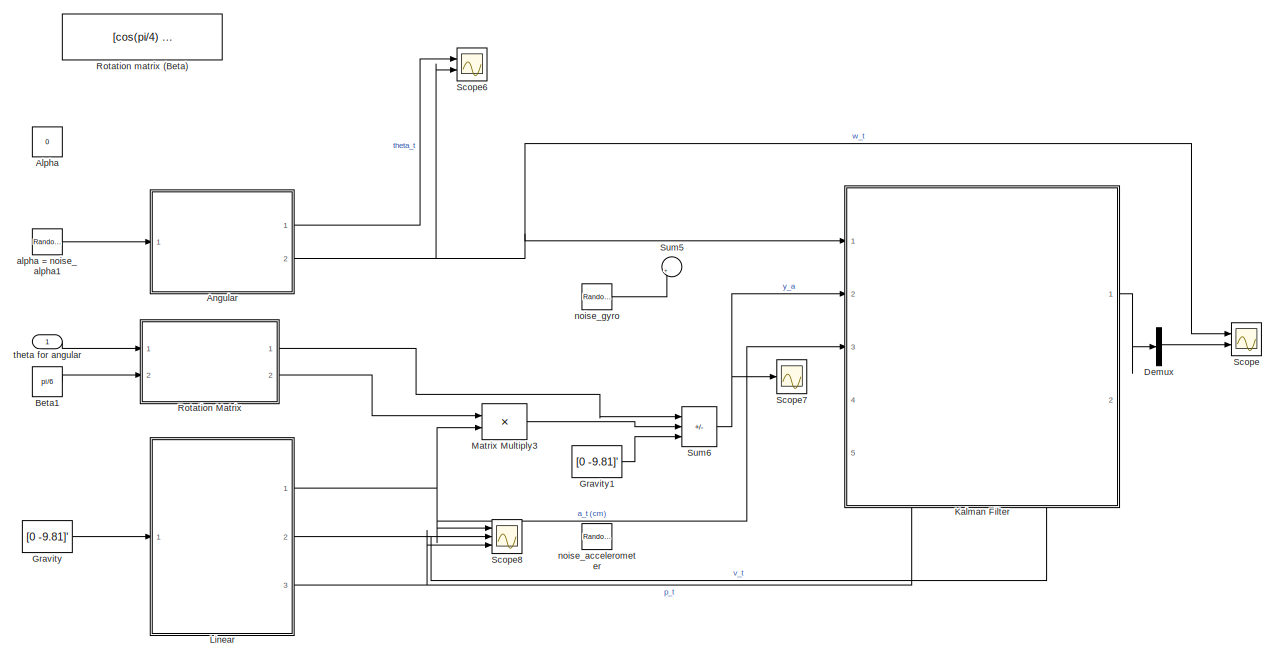
[diagram: root canvas - part 1/4, top right region]
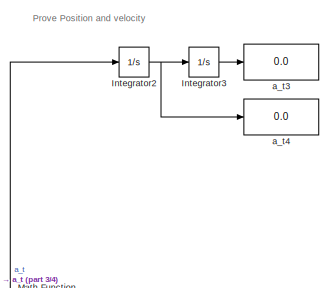
[diagram: root canvas - part 2/4, middle left region]
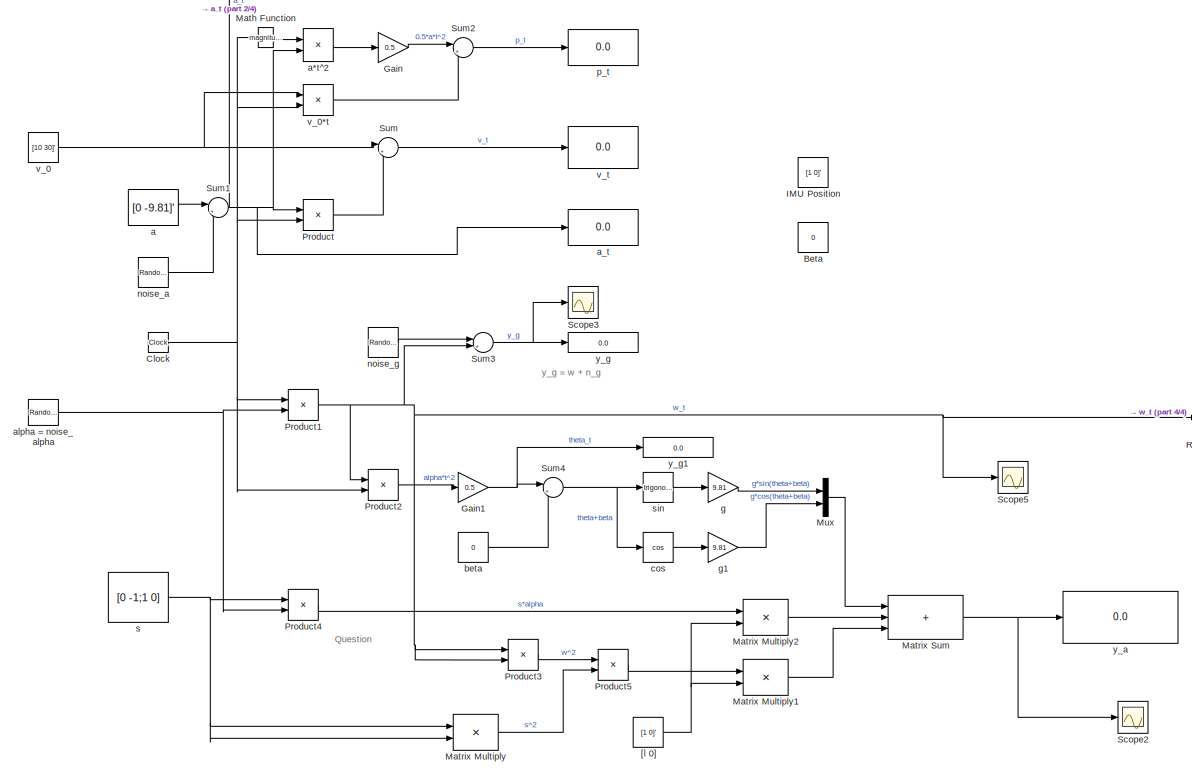
[diagram: root canvas - part 3/4, bottom left region]
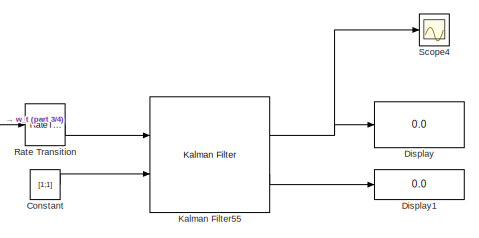
[diagram: root canvas - part 4/4, bottom center region]
MODEL slx_23c8442a9cd9
KIND model
CONFIG AbsTol = auto
CONFIG EnableMultiTasking = off
CONFIG FixedStep = auto
CONFIG MaxStep = auto
CONFIG MinStep = auto
CONFIG RelTol = 1e-3
CONFIG SampleTimeConstraint = Unconstrained
CONFIG SolverName = VariableStepAuto
CONFIG StartTime = 0.0
CONFIG StopTime = 10
BLOCK [Constant] Alpha
  Value = 0
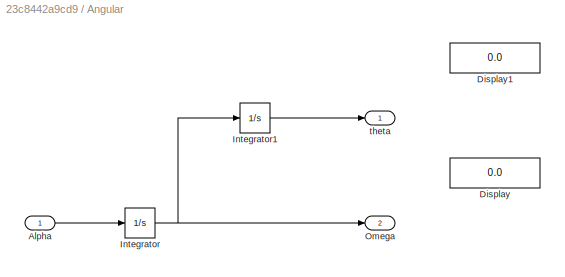
BLOCK [SubSystem] Angular
  NameLocation = top
  Ports = [1, 2]
  RequestExecContextInheritance = off
BLOCK [Inport] Angular/Alpha
BLOCK [Display] Angular/Display
  Decimation = 1
  Ports = [1]
BLOCK [Display] Angular/Display1
  Decimation = 1
  Ports = [1]
BLOCK [Integrator] Angular/Integrator
  Ports = [1, 1]
BLOCK [Integrator] Angular/Integrator1
  InitialCondition = pi/6
  Ports = [1, 1]
BLOCK [Outport] Angular/Omega
  Port = 2
BLOCK [Outport] Angular/theta
BLOCK [Constant] Beta
  Value = 0
  VectorParams1D = off
BLOCK [Constant] Beta1
  Value = pi/6
BLOCK [Clock] Clock
BLOCK [Constant] Constant
  Value = [1;1]
  VectorParams1D = off
BLOCK [Demux] Demux
  Outputs = 3
  Ports = [1, 3]
BLOCK [Display] Display
  Decimation = 1
  Ports = [1]
BLOCK [Display] Display1
  Decimation = 1
  Format = long
  Ports = [1]
BLOCK [Gain] Gain
  Gain = 0.5
BLOCK [Gain] Gain1
  Gain = 0.5
BLOCK [Constant] Gravity
  Value = [0 -9.81]'
  VectorParams1D = off
BLOCK [Constant] Gravity1
  SampleTime = 0.1
  Value = [0 -9.81]'
  VectorParams1D = off
BLOCK [Constant] IMU Position
  Value = [1 0]'
  VectorParams1D = off
BLOCK [Integrator] Integrator2
  InitialCondition = [10;30]
  Ports = [1, 1]
BLOCK [Integrator] Integrator3
  Ports = [1, 1]
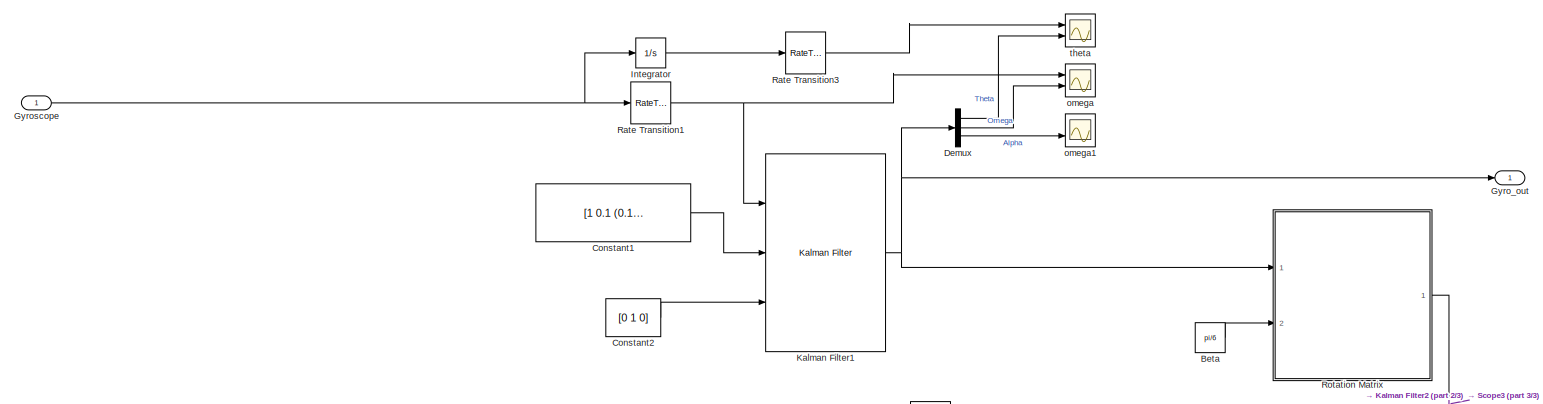
[diagram: Kalman Filter - part 1/3, full width, top band]
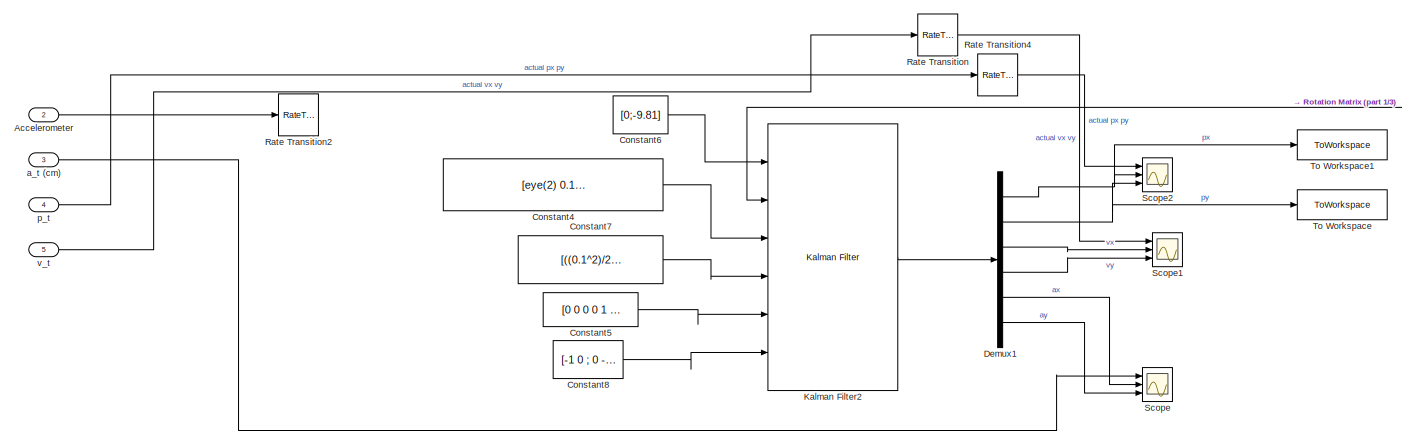
[diagram: Kalman Filter - part 2/3, full width, bottom band]
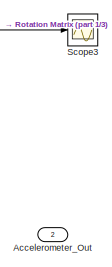
[diagram: Kalman Filter - part 3/3, middle right region]
BLOCK [SubSystem] Kalman Filter
  NameLocation = top
  PortSchema = {"entries":[{"content":{"sides":[{"content":{"connectorIds":["In1","In2","In3"]},"type":"ConnectorPlacement.EquallySpacedRectSide","uuid":"b91da42b-9c61-4823-9da5-de67facf4bc9"},{"content":{"connectorIds":["Out1","Out2"],"side":"RIGHT"},"type":"ConnectorPlacement.EquallySpacedRectSide","uuid":"2be3e4bd-003a-4305-9356-0140a49c88fd"},{"content":{"connectorIds":[],"side":"TOP"},"type":"ConnectorPlace...<+414ch>
  Ports = [5, 2]
  RequestExecContextInheritance = off
BLOCK [Inport] Kalman Filter/Accelerometer
  Port = 2
BLOCK [Outport] Kalman Filter/Accelerometer_Out
  Port = 2
BLOCK [Constant] Kalman Filter/Beta
  Value = pi/6
BLOCK [Constant] Kalman Filter/Constant1
  SampleTime = 0.1
  Value = [1 0.1 (0.1^2)/2;0 1 0.1;0 0 1]
  VectorParams1D = off
BLOCK [Constant] Kalman Filter/Constant2
  SampleTime = 0.1
  Value = [0 1 0]
  VectorParams1D = off
BLOCK [Constant] Kalman Filter/Constant4
  SampleTime = 0.1
  Value = [eye(2) 0.1.*eye(2) zeros(2);zeros(2) eye(2) zeros(2);zeros(2) zeros(2) zeros(2)]
  VectorParams1D = off
BLOCK [Constant] Kalman Filter/Constant5
  SampleTime = 0.1
  Value = [0 0 0 0 1 0;0 0 0 0 0 1]
  VectorParams1D = off
BLOCK [Constant] Kalman Filter/Constant6
  SampleTime = 0.1
  Value = [0;-9.81]
  VectorParams1D = off
BLOCK [Constant] Kalman Filter/Constant7
  SampleTime = 0.1
  Value = [((0.1^2)/2).*eye(2);0.1.*eye(2);eye(2)]
  VectorParams1D = off
BLOCK [Constant] Kalman Filter/Constant8
  SampleTime = 0.1
  Value = [-1 0 ; 0 -1]
  VectorParams1D = off
BLOCK [Demux] Kalman Filter/Demux
  Outputs = 3
  Ports = [1, 3]
BLOCK [Demux] Kalman Filter/Demux1
  Outputs = 6
  Ports = [1, 6]
BLOCK [Outport] Kalman Filter/Gyro_out
BLOCK [Inport] Kalman Filter/Gyroscope
BLOCK [Integrator] Kalman Filter/Integrator
  InitialCondition = pi/6
  Ports = [1, 1]
BLOCK [Reference] Kalman Filter/Kalman Filter1  REF=ctrlSharedLib/Kalman Filter
  Ports = [3, 1]
  SourceBlock = ctrlSharedLib/Kalman Filter
  SourceProductBaseCode = CT,ID
  SourceType = ctrlKalmanFilter
BLOCK [Reference] Kalman Filter/Kalman Filter2  REF=ctrlSharedLib/Kalman Filter
  Ports = [6, 1]
  SourceBlock = ctrlSharedLib/Kalman Filter
  SourceProductBaseCode = CT,ID
  SourceType = ctrlKalmanFilter
BLOCK [RateTransition] Kalman Filter/Rate Transition
  OutPortSampleTime = 0.1
BLOCK [RateTransition] Kalman Filter/Rate Transition1
  OutPortSampleTime = 0.1
BLOCK [RateTransition] Kalman Filter/Rate Transition2
  OutPortSampleTime = 0.1
BLOCK [RateTransition] Kalman Filter/Rate Transition3
  OutPortSampleTime = 0.1
BLOCK [RateTransition] Kalman Filter/Rate Transition4
  OutPortSampleTime = 0.1
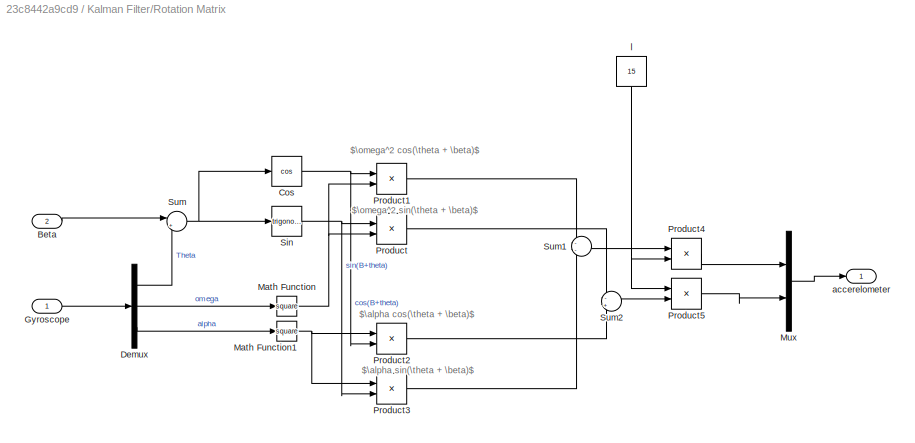
BLOCK [SubSystem] Kalman Filter/Rotation Matrix
  Ports = [2, 1]
  RequestExecContextInheritance = off
BLOCK [Inport] Kalman Filter/Rotation Matrix/Beta
  Port = 2
BLOCK [Trigonometry] Kalman Filter/Rotation Matrix/Cos
  Operator = cos
  Ports = [1, 1]
BLOCK [Demux] Kalman Filter/Rotation Matrix/Demux
  Outputs = 3
  Ports = [1, 3]
BLOCK [Inport] Kalman Filter/Rotation Matrix/Gyroscope
BLOCK [Math] Kalman Filter/Rotation Matrix/Math Function
  Operator = square
  Ports = [1, 1]
BLOCK [Math] Kalman Filter/Rotation Matrix/Math Function1
  Operator = square
  Ports = [1, 1]
BLOCK [Mux] Kalman Filter/Rotation Matrix/Mux
  DisplayOption = bar
  Inputs = 2
  Ports = [2, 1]
BLOCK [Product] Kalman Filter/Rotation Matrix/Product
  Ports = [2, 1]
BLOCK [Product] Kalman Filter/Rotation Matrix/Product1
  Ports = [2, 1]
BLOCK [Product] Kalman Filter/Rotation Matrix/Product2
  Ports = [2, 1]
BLOCK [Product] Kalman Filter/Rotation Matrix/Product3
  Ports = [2, 1]
BLOCK [Product] Kalman Filter/Rotation Matrix/Product4
  Ports = [2, 1]
BLOCK [Product] Kalman Filter/Rotation Matrix/Product5
  Ports = [2, 1]
BLOCK [Trigonometry] Kalman Filter/Rotation Matrix/Sin
  Ports = [1, 1]
BLOCK [Sum] Kalman Filter/Rotation Matrix/Sum
  Inputs = |++
  Ports = [2, 1]
BLOCK [Sum] Kalman Filter/Rotation Matrix/Sum1
  Inputs = --
  Ports = [2, 1]
BLOCK [Sum] Kalman Filter/Rotation Matrix/Sum2
  Inputs = -+
  Ports = [2, 1]
BLOCK [Outport] Kalman Filter/Rotation Matrix/accerelometer
BLOCK [Constant] Kalman Filter/Rotation Matrix/l
  NameLocation = top
  SampleTime = 0.1
  Value = 15
  VectorParams1D = off
BLOCK [Scope] Kalman Filter/Scope
  Floating = off
  NumInputPorts = 3
  Ports = [3]
  ScopeSpecificationString = Simulink.scopes.TimeScopeBlockCfg('CurrentConfiguration', extmgr.ConfigurationSet(extmgr.Configuration('Core','General UI',true),extmgr.Configuration('Core','Source UI',true),extmgr.Configuration('Sources','WiredSimulink',true,'DataLoggingVariableName','ScopeData2'),extmgr.Configuration('Visuals','Time Domain',true,'SerializedDisplays',{struct('MinYLimReal','-14.08176','MaxYLimReal','3.80741','YLa...<+1562ch>
BLOCK [Scope] Kalman Filter/Scope1
  Floating = off
  NumInputPorts = 3
  Ports = [3]
  ScopeSpecificationString = Simulink.scopes.TimeScopeBlockCfg('CurrentConfiguration', extmgr.ConfigurationSet(extmgr.Configuration('Core','General UI',true),extmgr.Configuration('Core','Source UI',true),extmgr.Configuration('Sources','WiredSimulink',true,'DataLoggingVariableName','ScopeData3'),extmgr.Configuration('Visuals','Time Domain',true,'SerializedDisplays',{struct('MinYLimReal','-105.61389','MaxYLimReal','18.2951','YL...<+1481ch>
BLOCK [Scope] Kalman Filter/Scope2
  Floating = off
  NumInputPorts = 3
  Ports = [3]
  ScopeSpecificationString = Simulink.scopes.TimeScopeBlockCfg('CurrentConfiguration', extmgr.ConfigurationSet(extmgr.Configuration('Core','General UI',true),extmgr.Configuration('Core','Source UI',true),extmgr.Configuration('Sources','WiredSimulink',true,'DataLoggingVariableName','ScopeData4'),extmgr.Configuration('Visuals','Time Domain',true,'SerializedDisplays',{struct('MinYLimReal','-502.83885','MaxYLimReal','115.89466','...<+1456ch>
BLOCK [Scope] Kalman Filter/Scope3
  Floating = off
  NumInputPorts = 1
  Ports = [1]
  ScopeSpecificationString = Simulink.scopes.TimeScopeBlockCfg('CurrentConfiguration', extmgr.ConfigurationSet(extmgr.Configuration('Core','General UI',true),extmgr.Configuration('Core','Source UI',true),extmgr.Configuration('Sources','WiredSimulink',true,'DataLoggingVariableName','ScopeData1'),extmgr.Configuration('Visuals','Time Domain',true,'SerializedDisplays',{struct('MinYLimReal','-0.0975','MaxYLimReal','0.01083','YLabe...<+1434ch>
BLOCK [ToWorkspace] Kalman Filter/To Workspace
  FixptAsFi = on
  MaxDataPoints = inf
  Ports = [1]
  SampleTime = -1
  SaveFormat = Timeseries
  VariableName = simout
BLOCK [ToWorkspace] Kalman Filter/To Workspace1
  FixptAsFi = on
  MaxDataPoints = inf
  Ports = [1]
  SampleTime = -1
  SaveFormat = Timeseries
  VariableName = simout1
BLOCK [Inport] Kalman Filter/a_t (cm)
  Port = 3
BLOCK [Scope] Kalman Filter/omega
  Floating = off
  NumInputPorts = 2
  Ports = [2]
  ScopeSpecificationString = Simulink.scopes.TimeScopeBlockCfg('CurrentConfiguration', extmgr.ConfigurationSet(extmgr.Configuration('Core','General UI',true),extmgr.Configuration('Core','Source UI',true),extmgr.Configuration('Sources','WiredSimulink',true,'DataLoggingVariableName','ScopeData9'),extmgr.Configuration('Visuals','Time Domain',true,'SerializedDisplays',{struct('MinYLimReal','-0.0113','MaxYLimReal','0.10172','YLabe...<+1379ch>
BLOCK [Scope] Kalman Filter/omega1
  Floating = off
  NumInputPorts = 2
  Ports = [2]
  ScopeSpecificationString = Simulink.scopes.TimeScopeBlockCfg('CurrentConfiguration', extmgr.ConfigurationSet(extmgr.Configuration('Core','General UI',true),extmgr.Configuration('Core','Source UI',true),extmgr.Configuration('Sources','WiredSimulink',true,'DataLoggingVariableName','ScopeData1'),extmgr.Configuration('Visuals','Time Domain',true,'SerializedDisplays',{struct('MinYLimReal','-0.01024','MaxYLimReal','0.03339','YLab...<+1374ch>
BLOCK [Inport] Kalman Filter/p_t
  Port = 4
BLOCK [Scope] Kalman Filter/theta
  Floating = off
  NumInputPorts = 2
  Ports = [2]
  ScopeSpecificationString = Simulink.scopes.TimeScopeBlockCfg('CurrentConfiguration', extmgr.ConfigurationSet(extmgr.Configuration('Core','General UI',true),extmgr.Configuration('Core','Source UI',true),extmgr.Configuration('Sources','WiredSimulink',true,'DataLoggingVariableName','ScopeData8'),extmgr.Configuration('Visuals','Time Domain',true,'SerializedDisplays',{struct('MinYLimReal','0.47333','MaxYLimReal','0.976','YLabelR...<+1373ch>
BLOCK [Inport] Kalman Filter/v_t
  Port = 5
BLOCK [Reference] Kalman Filter55  REF=ctrlSharedLib/Kalman Filter
  Ports = [2, 2]
  SourceBlock = ctrlSharedLib/Kalman Filter
  SourceProductBaseCode = CT,ID
  SourceType = ctrlKalmanFilter
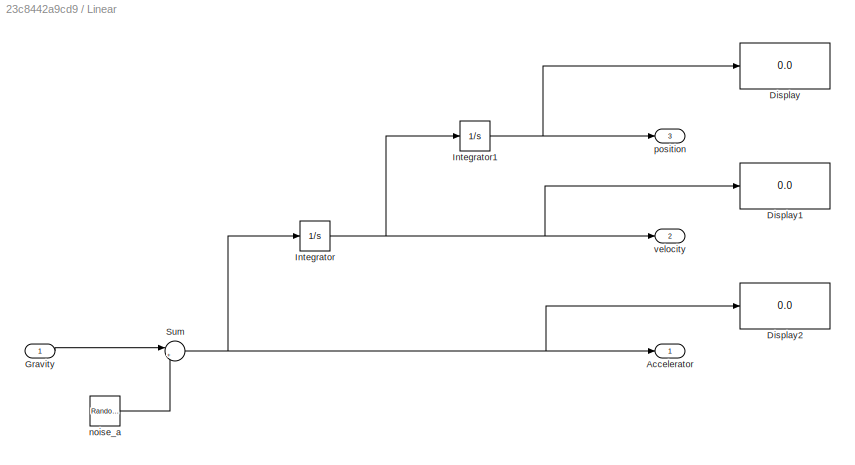
BLOCK [SubSystem] Linear
  NameLocation = top
  Ports = [1, 3]
  RequestExecContextInheritance = off
BLOCK [Outport] Linear/Accelerator
BLOCK [Display] Linear/Display
  Decimation = 1
  Ports = [1]
BLOCK [Display] Linear/Display1
  Decimation = 1
  Ports = [1]
BLOCK [Display] Linear/Display2
  Decimation = 1
  Ports = [1]
BLOCK [Inport] Linear/Gravity
BLOCK [Integrator] Linear/Integrator
  InitialCondition = [5 5]'
  Ports = [1, 1]
BLOCK [Integrator] Linear/Integrator1
  InitialCondition = [0 0]'
  Ports = [1, 1]
BLOCK [Sum] Linear/Sum
  Inputs = |++
  Ports = [2, 1]
BLOCK [RandomNumber] Linear/noise_a
  SampleTime = 0.1
BLOCK [Outport] Linear/position
  Port = 3
BLOCK [Outport] Linear/velocity
  Port = 2
BLOCK [Math] Math Function
  Operator = magnitude^2
  Ports = [1, 1]
BLOCK [Product] Matrix Multiply
  Multiplication = Matrix(*)
  Ports = [2, 1]
BLOCK [Product] Matrix Multiply1
  Multiplication = Matrix(*)
  Ports = [2, 1]
BLOCK [Product] Matrix Multiply2
  Multiplication = Matrix(*)
  Ports = [2, 1]
BLOCK [Product] Matrix Multiply3
  Multiplication = Matrix(*)
  Ports = [2, 1]
BLOCK [Sum] Matrix Sum
  IconShape = rectangular
  Inputs = +++
  Ports = [3, 1]
BLOCK [Mux] Mux
  DisplayOption = bar
  Inputs = 2
  Ports = [2, 1]
BLOCK [Product] Product
  Ports = [2, 1]
BLOCK [Product] Product1
  Ports = [2, 1]
BLOCK [Product] Product2
  Ports = [2, 1]
BLOCK [Product] Product3
  Ports = [2, 1]
BLOCK [Product] Product4
  Ports = [2, 1]
BLOCK [Product] Product5
  Ports = [2, 1]
BLOCK [RateTransition] Rate Transition
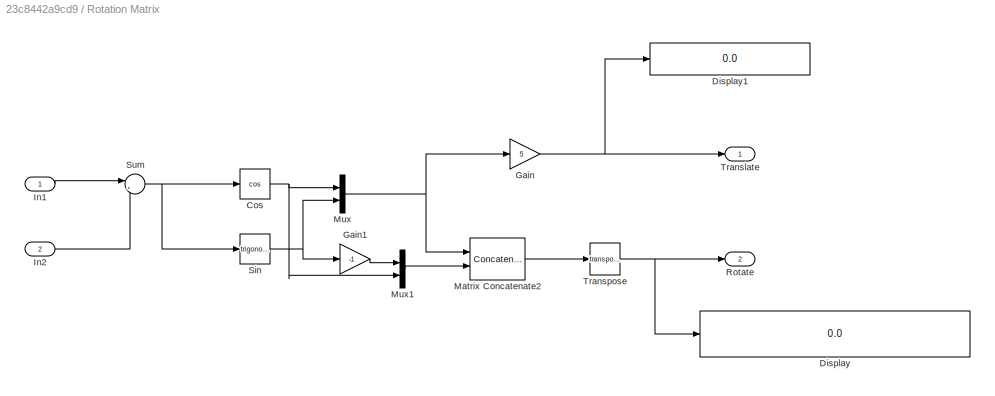
BLOCK [SubSystem] Rotation Matrix
  Ports = [2, 2]
  RequestExecContextInheritance = off
BLOCK [Trigonometry] Rotation Matrix/Cos
  Operator = cos
  Ports = [1, 1]
BLOCK [Display] Rotation Matrix/Display
  Decimation = 1
  Ports = [1]
BLOCK [Display] Rotation Matrix/Display1
  Decimation = 1
  Ports = [1]
BLOCK [Gain] Rotation Matrix/Gain
  Gain = 5
BLOCK [Gain] Rotation Matrix/Gain1
  Gain = -1
BLOCK [Inport] Rotation Matrix/In1
BLOCK [Inport] Rotation Matrix/In2
  Port = 2
BLOCK [Concatenate] Rotation Matrix/Matrix Concatenate2
  ConcatenateDimension = 2
  Mode = Multidimensional array
  Ports = [2, 1]
BLOCK [Mux] Rotation Matrix/Mux
  DisplayOption = bar
  Inputs = 2
  Ports = [2, 1]
BLOCK [Mux] Rotation Matrix/Mux1
  DisplayOption = bar
  Inputs = 2
  Ports = [2, 1]
BLOCK [Outport] Rotation Matrix/Rotate
  Port = 2
BLOCK [Trigonometry] Rotation Matrix/Sin
  Ports = [1, 1]
BLOCK [Sum] Rotation Matrix/Sum
  Inputs = |++
  Ports = [2, 1]
BLOCK [Outport] Rotation Matrix/Translate
BLOCK [Math] Rotation Matrix/Transpose
  Operator = transpose
  Ports = [1, 1]
BLOCK [Constant] Rotation matrix (Beta)
  Value = [cos(pi/4) sin(pi/4);-sin(pi/4) cos(pi/4)]
  VectorParams1D = off
BLOCK [Scope] Scope
  Floating = off
  NumInputPorts = 2
  Ports = [2]
  ScopeSpecificationString = Simulink.scopes.TimeScopeBlockCfg('CurrentConfiguration', extmgr.ConfigurationSet(extmgr.Configuration('Core','General UI',true),extmgr.Configuration('Core','Source UI',true),extmgr.Configuration('Sources','WiredSimulink',true,'DataLoggingVariableName','ScopeData5'),extmgr.Configuration('Visuals','Time Domain',true,'SerializedDisplays',{struct('MinYLimReal','-0.22472','MaxYLimReal','0.3261','YLabe...<+1401ch>
BLOCK [Scope] Scope2
  Floating = off
  NumInputPorts = 1
  Ports = [1]
  ScopeSpecificationString = Simulink.scopes.TimeScopeBlockCfg('CurrentConfiguration', extmgr.ConfigurationSet(extmgr.Configuration('Core','General UI',true),extmgr.Configuration('Core','Source UI',true),extmgr.Configuration('Sources','WiredSimulink',true,'DataLoggingVariableName','ScopeData2'),extmgr.Configuration('Visuals','Time Domain',true,'SerializedDisplays',{struct('MinYLimReal','-13.36131','MaxYLimReal','12.5737','YLa...<+1693ch>
BLOCK [Scope] Scope3
  Commented = on
  Floating = off
  NumInputPorts = 1
  Ports = [1]
  ScopeSpecificationString = Simulink.scopes.TimeScopeBlockCfg('CurrentConfiguration', extmgr.ConfigurationSet(extmgr.Configuration('Core','General UI',true),extmgr.Configuration('Core','Source UI',true),extmgr.Configuration('Sources','WiredSimulink',true,'DataLoggingVariableName','ScopeData3'),extmgr.Configuration('Visuals','Time Domain',true,'SerializedDisplays',{struct('MinYLimReal','-3.03307','MaxYLimReal','2.22094','YLab...<+1399ch>
BLOCK [Scope] Scope4
  Floating = off
  NumInputPorts = 1
  Ports = [1]
  ScopeSpecificationString = Simulink.scopes.TimeScopeBlockCfg('CurrentConfiguration', extmgr.ConfigurationSet(extmgr.Configuration('Core','General UI',true),extmgr.Configuration('Core','Source UI',true),extmgr.Configuration('Sources','WiredSimulink',true,'DataLoggingVariableName','ScopeData4'),extmgr.Configuration('Visuals','Time Domain',true,'SerializedDisplays',{struct('MinYLimReal','-30.21857','MaxYLimReal','5.2383','YLab...<+1440ch>
BLOCK [Scope] Scope5
  Floating = off
  NumInputPorts = 1
  Ports = [1]
  ScopeSpecificationString = Simulink.scopes.TimeScopeBlockCfg('CurrentConfiguration', extmgr.ConfigurationSet(extmgr.Configuration('Core','General UI',true),extmgr.Configuration('Core','Source UI',true),extmgr.Configuration('Sources','WiredSimulink',true,'DataLoggingVariableName','ScopeData5'),extmgr.Configuration('Visuals','Time Domain',true,'SerializedDisplays',{struct('MinYLimReal','-2.75593','MaxYLimReal','1.98605','YLab...<+1420ch>
BLOCK [Scope] Scope6
  Floating = off
  NumInputPorts = 2
  Ports = [2]
  ScopeSpecificationString = Simulink.scopes.TimeScopeBlockCfg('CurrentConfiguration', extmgr.ConfigurationSet(extmgr.Configuration('Core','General UI',true),extmgr.Configuration('Core','Source UI',true),extmgr.Configuration('Sources','WiredSimulink',true,'DataLoggingVariableName','ScopeData2'),extmgr.Configuration('Visuals','Time Domain',true,'SerializedDisplays',{struct('MinYLimReal','-1.54199','MaxYLimReal','12.18149','YLa...<+1407ch>
BLOCK [Scope] Scope7
  Floating = off
  NumInputPorts = 1
  Ports = [1]
  ScopeSpecificationString = Simulink.scopes.TimeScopeBlockCfg('CurrentConfiguration', extmgr.ConfigurationSet(extmgr.Configuration('Core','General UI',true),extmgr.Configuration('Core','Source UI',true),extmgr.Configuration('Sources','WiredSimulink',true,'DataLoggingVariableName','ScopeData3'),extmgr.Configuration('Visuals','Time Domain',true,'SerializedDisplays',{struct('MinYLimReal','-5.03145','MaxYLimReal','5.61806','YLab...<+1755ch>
BLOCK [Scope] Scope8
  Floating = off
  NumInputPorts = 3
  Ports = [3]
  ScopeSpecificationString = Simulink.scopes.TimeScopeBlockCfg('CurrentConfiguration', extmgr.ConfigurationSet(extmgr.Configuration('Core','General UI',true),extmgr.Configuration('Core','Source UI',true),extmgr.Configuration('Sources','WiredSimulink',true,'DataLoggingVariableName','ScopeData4'),extmgr.Configuration('Visuals','Time Domain',true,'SerializedDisplays',{struct('MinYLimReal','-497.79119','MaxYLimReal','115.33381','...<+1483ch>
BLOCK [Sum] Sum
  Inputs = |++
  Ports = [2, 1]
BLOCK [Sum] Sum1
  Inputs = |++
  Ports = [2, 1]
BLOCK [Sum] Sum2
  Inputs = |++
  Ports = [2, 1]
BLOCK [Sum] Sum3
  Commented = on
  Inputs = |++
  Ports = [2, 1]
BLOCK [Sum] Sum4
  Inputs = |++
  Ports = [2, 1]
BLOCK [Sum] Sum5
  Commented = on
  Inputs = |++
  Ports = [2, 1]
BLOCK [Sum] Sum6
  IconShape = rectangular
  Inputs = ++-
  Ports = [3, 1]
BLOCK [Constant] [l 0]
  Value = [1 0]'
  VectorParams1D = off
BLOCK [Constant] a
  Value = [0 -9.81]'
  VectorParams1D = off
BLOCK [Product] a*t^2
  Ports = [2, 1]
BLOCK [Display] a_t
  Decimation = 1
  Ports = [1]
BLOCK [Display] a_t3
  Decimation = 1
  Ports = [1]
BLOCK [Display] a_t4
  Decimation = 1
  Ports = [1]
BLOCK [RandomNumber] alpha = noise_alpha
  SampleTime = 0.1
  Variance = 0.01
  VectorParams1D = off
BLOCK [RandomNumber] alpha = noise_alpha1
  SampleTime = 0.1
  Variance = 0.01
BLOCK [Constant] beta
  Value = 0
BLOCK [Trigonometry] cos
  Operator = cos
  Ports = [1, 1]
BLOCK [Gain] g
  Gain = 9.81
BLOCK [Gain] g1
  Gain = 9.81
BLOCK [RandomNumber] noise_a
  Commented = on
  Mean = [0 0]'
  SampleTime = 0.1
  Seed = [0 0]'
  Variance = [0.01 0.01]'
BLOCK [RandomNumber] noise_accelerometer
  Commented = on
  SampleTime = 0.1
  Variance = [0.01 0.01]
BLOCK [RandomNumber] noise_g
  Commented = on
  SampleTime = 0.1
  Variance = 0.01
BLOCK [RandomNumber] noise_gyro
  Commented = on
  SampleTime = 0.1
  Variance = [0.01]
BLOCK [Display] p_t
  Decimation = 1
  Ports = [1]
BLOCK [Constant] s
  Value = [0 -1;1 0]
  VectorParams1D = off
BLOCK [Trigonometry] sin
  Ports = [1, 1]
BLOCK [Inport] theta for angular
BLOCK [Constant] v_0
  Value = [10 30]'
  VectorParams1D = off
BLOCK [Product] v_0*t
  Ports = [2, 1]
BLOCK [Display] v_t
  Decimation = 1
  Ports = [1]
BLOCK [Display] y_a
  Decimation = 1
  Ports = [1]
BLOCK [Display] y_g
  Commented = on
  Decimation = 1
  Ports = [1]
BLOCK [Display] y_g1
  Decimation = 1
  Ports = [1]
ANNOTATION (root): Question
ANNOTATION (root): Prove Position and velocity
ANNOTATION (root): y_g = w + n_g
ANNOTATION Kalman Filter/Rotation Matrix: $\alpha cos(\theta + \beta)$
ANNOTATION Kalman Filter/Rotation Matrix: $\alpha sin(\theta + \beta)$
ANNOTATION Kalman Filter/Rotation Matrix: $\omega^2 cos(\theta + \beta)$
ANNOTATION Kalman Filter/Rotation Matrix: $\omega^2 sin(\theta + \beta)$
LINE Angular/Alpha:1 -> Angular/Integrator:1
LINE Angular/Integrator1:1 -> Angular/theta:1
NET Angular/Integrator:1 -> Angular/Integrator1:1, Angular/Omega:1
LINE Angular:1 -> Scope6:1
NET Angular:2 -> Kalman Filter:1, Scope6:2, Scope:1
LINE Beta1:1 -> Rotation Matrix:2
NET Clock:1 -> Math Function:1, Product1:1, Product2:2, Product:2, v_0*t:2
LINE Constant:1 -> Kalman Filter55:2
LINE Demux:2 -> Scope:2
NET Gain1:1 -> Sum4:1, y_g1:1
LINE Gain:1 -> Sum2:1
LINE Gravity1:1 -> Sum6:3
LINE Gravity:1 -> Linear:1
NET Integrator2:1 -> Integrator3:1, a_t4:1
LINE Integrator3:1 -> a_t3:1
LINE Kalman Filter/Accelerometer:1 -> Kalman Filter/Rate Transition2:1
LINE Kalman Filter/Beta:1 -> Kalman Filter/Rotation Matrix:2
LINE Kalman Filter/Constant1:1 -> Kalman Filter/Kalman Filter1:2
LINE Kalman Filter/Constant2:1 -> Kalman Filter/Kalman Filter1:3
LINE Kalman Filter/Constant4:1 -> Kalman Filter/Kalman Filter2:3
LINE Kalman Filter/Constant5:1 -> Kalman Filter/Kalman Filter2:5
LINE Kalman Filter/Constant6:1 -> Kalman Filter/Kalman Filter2:1
LINE Kalman Filter/Constant7:1 -> Kalman Filter/Kalman Filter2:4
LINE Kalman Filter/Constant8:1 -> Kalman Filter/Kalman Filter2:6
NET Kalman Filter/Demux1:1 -> Kalman Filter/Scope2:2, Kalman Filter/To Workspace1:1
NET Kalman Filter/Demux1:2 -> Kalman Filter/Scope2:3, Kalman Filter/To Workspace:1
LINE Kalman Filter/Demux1:3 -> Kalman Filter/Scope1:2
LINE Kalman Filter/Demux1:4 -> Kalman Filter/Scope1:3
LINE Kalman Filter/Demux1:5 -> Kalman Filter/Scope:2
LINE Kalman Filter/Demux1:6 -> Kalman Filter/Scope:3
LINE Kalman Filter/Demux:1 -> Kalman Filter/theta:2
LINE Kalman Filter/Demux:2 -> Kalman Filter/omega:2
LINE Kalman Filter/Demux:3 -> Kalman Filter/omega1:2
NET Kalman Filter/Gyroscope:1 -> Kalman Filter/Integrator:1, Kalman Filter/Rate Transition1:1
LINE Kalman Filter/Integrator:1 -> Kalman Filter/Rate Transition3:1
NET Kalman Filter/Kalman Filter1:1 -> Kalman Filter/Demux:1, Kalman Filter/Gyro_out:1, Kalman Filter/Rotation Matrix:1
LINE Kalman Filter/Kalman Filter2:1 -> Kalman Filter/Demux1:1
NET Kalman Filter/Rate Transition1:1 -> Kalman Filter/Kalman Filter1:1, Kalman Filter/omega:1
LINE Kalman Filter/Rate Transition3:1 -> Kalman Filter/theta:1
LINE Kalman Filter/Rate Transition4:1 -> Kalman Filter/Scope2:1
LINE Kalman Filter/Rate Transition:1 -> Kalman Filter/Scope1:1
LINE Kalman Filter/Rotation Matrix/Beta:1 -> Kalman Filter/Rotation Matrix/Sum:1
NET Kalman Filter/Rotation Matrix/Cos:1 -> Kalman Filter/Rotation Matrix/Product1:1, Kalman Filter/Rotation Matrix/Product2:2
LINE Kalman Filter/Rotation Matrix/Demux:1 -> Kalman Filter/Rotation Matrix/Sum:2
LINE Kalman Filter/Rotation Matrix/Demux:2 -> Kalman Filter/Rotation Matrix/Math Function:1
LINE Kalman Filter/Rotation Matrix/Demux:3 -> Kalman Filter/Rotation Matrix/Math Function1:1
LINE Kalman Filter/Rotation Matrix/Gyroscope:1 -> Kalman Filter/Rotation Matrix/Demux:1
NET Kalman Filter/Rotation Matrix/Math Function1:1 -> Kalman Filter/Rotation Matrix/Product2:1, Kalman Filter/Rotation Matrix/Product3:1
NET Kalman Filter/Rotation Matrix/Math Function:1 -> Kalman Filter/Rotation Matrix/Product1:2, Kalman Filter/Rotation Matrix/Product:2
LINE Kalman Filter/Rotation Matrix/Mux:1 -> Kalman Filter/Rotation Matrix/accerelometer:1
LINE Kalman Filter/Rotation Matrix/Product1:1 -> Kalman Filter/Rotation Matrix/Sum1:1
LINE Kalman Filter/Rotation Matrix/Product2:1 -> Kalman Filter/Rotation Matrix/Sum2:2
LINE Kalman Filter/Rotation Matrix/Product3:1 -> Kalman Filter/Rotation Matrix/Sum1:2
LINE Kalman Filter/Rotation Matrix/Product4:1 -> Kalman Filter/Rotation Matrix/Mux:1
LINE Kalman Filter/Rotation Matrix/Product5:1 -> Kalman Filter/Rotation Matrix/Mux:2
LINE Kalman Filter/Rotation Matrix/Product:1 -> Kalman Filter/Rotation Matrix/Sum2:1
NET Kalman Filter/Rotation Matrix/Sin:1 -> Kalman Filter/Rotation Matrix/Product3:2, Kalman Filter/Rotation Matrix/Product:1
LINE Kalman Filter/Rotation Matrix/Sum1:1 -> Kalman Filter/Rotation Matrix/Product4:1
LINE Kalman Filter/Rotation Matrix/Sum2:1 -> Kalman Filter/Rotation Matrix/Product5:2
NET Kalman Filter/Rotation Matrix/Sum:1 -> Kalman Filter/Rotation Matrix/Cos:1, Kalman Filter/Rotation Matrix/Sin:1
NET Kalman Filter/Rotation Matrix/l:1 -> Kalman Filter/Rotation Matrix/Product4:2, Kalman Filter/Rotation Matrix/Product5:1
NET Kalman Filter/Rotation Matrix:1 -> Kalman Filter/Kalman Filter2:2, Kalman Filter/Scope3:1
LINE Kalman Filter/a_t (cm):1 -> Kalman Filter/Scope:1
LINE Kalman Filter/p_t:1 -> Kalman Filter/Rate Transition4:1
LINE Kalman Filter/v_t:1 -> Kalman Filter/Rate Transition:1
NET Kalman Filter55:1 -> Display:1, Scope4:1
LINE Kalman Filter55:2 -> Display1:1
LINE Kalman Filter:1 -> Demux:1
LINE Linear/Gravity:1 -> Linear/Sum:1
NET Linear/Integrator1:1 -> Linear/Display:1, Linear/position:1
NET Linear/Integrator:1 -> Linear/Display1:1, Linear/Integrator1:1, Linear/velocity:1
NET Linear/Sum:1 -> Linear/Accelerator:1, Linear/Display2:1, Linear/Integrator:1
LINE Linear/noise_a:1 -> Linear/Sum:2
NET Linear:1 -> Kalman Filter:3, Matrix Multiply3:2, Scope8:1
NET Linear:2 -> Kalman Filter:5, Scope8:2
NET Linear:3 -> Kalman Filter:4, Scope8:3
LINE Math Function:1 -> a*t^2:1
LINE Matrix Multiply1:1 -> Matrix Sum:3
LINE Matrix Multiply2:1 -> Matrix Sum:2
LINE Matrix Multiply3:1 -> Sum6:2
LINE Matrix Multiply:1 -> Product5:2
NET Matrix Sum:1 -> Scope2:1, y_a:1
LINE Mux:1 -> Matrix Sum:1
NET Product1:1 -> Product2:1, Product3:1, Product3:2, Rate Transition:1, Scope5:1, Sum3:2
LINE Product2:1 -> Gain1:1
LINE Product3:1 -> Product5:1
LINE Product4:1 -> Matrix Multiply2:1
LINE Product5:1 -> Matrix Multiply1:1
LINE Product:1 -> Sum:2
LINE Rate Transition:1 -> Kalman Filter55:1
NET Rotation Matrix/Cos:1 -> Rotation Matrix/Mux1:2, Rotation Matrix/Mux:1
LINE Rotation Matrix/Gain1:1 -> Rotation Matrix/Mux1:1
NET Rotation Matrix/Gain:1 -> Rotation Matrix/Display1:1, Rotation Matrix/Translate:1
LINE Rotation Matrix/In1:1 -> Rotation Matrix/Sum:1
LINE Rotation Matrix/In2:1 -> Rotation Matrix/Sum:2
LINE Rotation Matrix/Matrix Concatenate2:1 -> Rotation Matrix/Transpose:1
LINE Rotation Matrix/Mux1:1 -> Rotation Matrix/Matrix Concatenate2:2
NET Rotation Matrix/Mux:1 -> Rotation Matrix/Gain:1, Rotation Matrix/Matrix Concatenate2:1
NET Rotation Matrix/Sin:1 -> Rotation Matrix/Gain1:1, Rotation Matrix/Mux:2
NET Rotation Matrix/Sum:1 -> Rotation Matrix/Cos:1, Rotation Matrix/Sin:1
NET Rotation Matrix/Transpose:1 -> Rotation Matrix/Display:1, Rotation Matrix/Rotate:1
LINE Rotation Matrix:1 -> Sum6:1
LINE Rotation Matrix:2 -> Matrix Multiply3:1
NET Sum1:1 -> Integrator2:1, Product:1, a*t^2:2, a_t:1
LINE Sum2:1 -> p_t:1
NET Sum3:1 -> Scope3:1, y_g:1
NET Sum4:1 -> cos:1, sin:1
NET Sum6:1 -> Kalman Filter:2, Scope7:1
LINE Sum:1 -> v_t:1
NET [l 0]:1 -> Matrix Multiply1:2, Matrix Multiply2:2
LINE a*t^2:1 -> Gain:1
LINE a:1 -> Sum1:1
LINE alpha = noise_alpha1:1 -> Angular:1
NET alpha = noise_alpha:1 -> Product1:2, Product4:2
LINE beta:1 -> Sum4:2
LINE cos:1 -> g1:1
LINE g1:1 -> Mux:2
LINE g:1 -> Mux:1
LINE noise_a:1 -> Sum1:2
LINE noise_g:1 -> Sum3:1
LINE noise_gyro:1 -> Sum5:2
NET s:1 -> Matrix Multiply:1, Matrix Multiply:2, Product4:1
LINE sin:1 -> g:1
LINE theta for angular:1 -> Rotation Matrix:1
LINE v_0*t:1 -> Sum2:2
NET v_0:1 -> Sum:1, v_0*t:1
note: NET lines group one-source signal fan-out (src -> all destinations, sorted); 1:1 wires keep LINE
